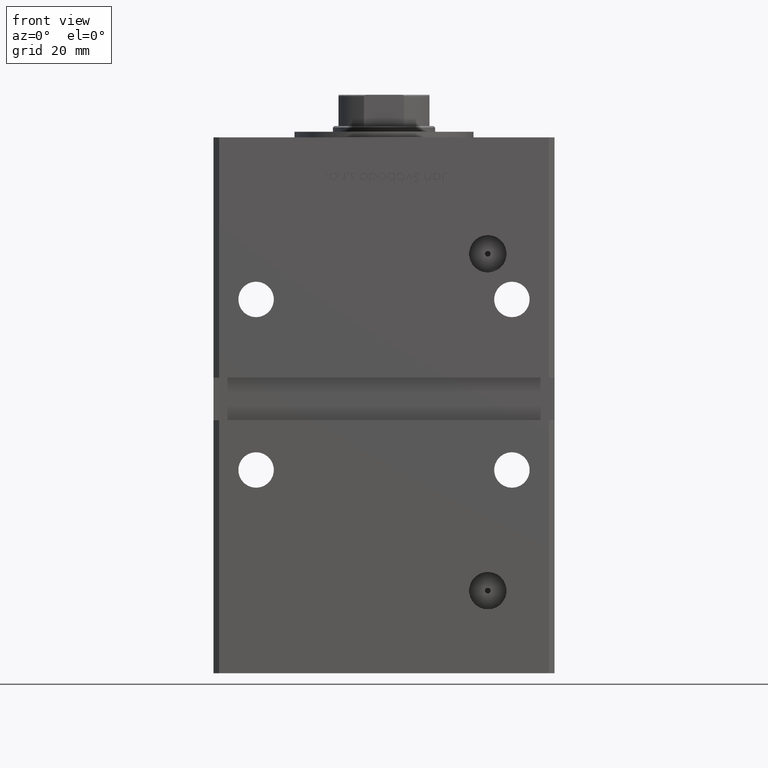
[diagram: clean part render]
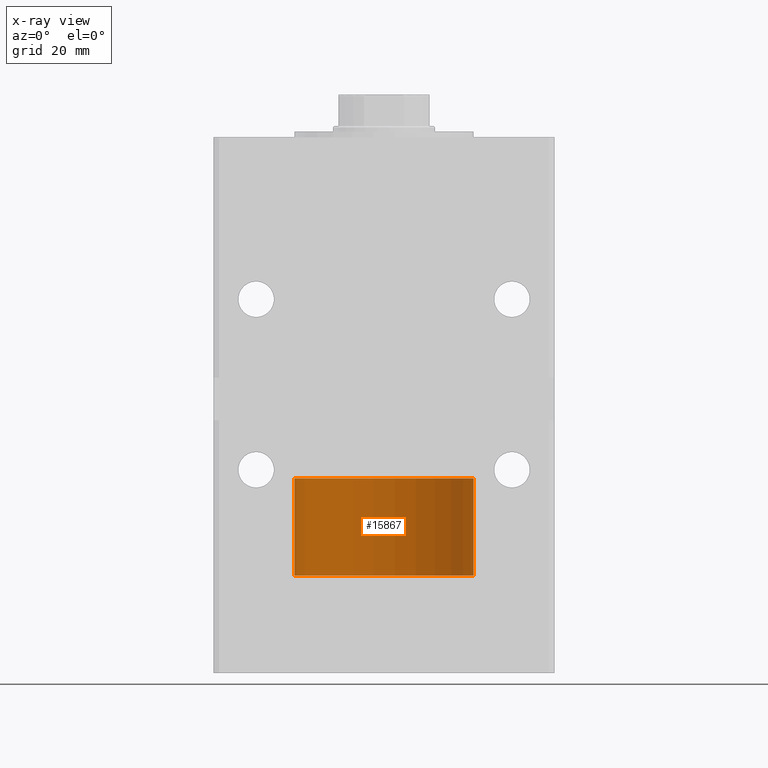
[diagram: x-ray — body ghosted, one internal face saturated and labeled with its STEP entity id]
A machine part, front view, then the same camera in x-ray: the body is ghosted and one INTERNAL B-rep face — a face not visible from any outside direction — is saturated and labeled: STEP entity #15867.
In plain terms, the highlighted cylindrical surface (partial cylindrical patch) has radius 31.5 mm, axis along (-0, -0, -1).
Its self-contained STEP definition (entity closure, byte-faithful):
#2708 = DIRECTION ( 'NONE',  ( -1.000000000000000000, 0.000000000000000000, 0.000000000000000000 ) ) ;
#3228 = FACE_OUTER_BOUND ( 'NONE', #37756, .T. ) ;
#4379 = CIRCLE ( 'NONE', #28385, 31.50000000000000000 ) ;
#5987 = DIRECTION ( 'NONE',  ( 1.000000000000000000, 0.000000000000000000, 0.000000000000000000 ) ) ;
#6071 = DIRECTION ( 'NONE',  ( -0.000000000000000000, -0.000000000000000000, -1.000000000000000000 ) ) ;
#6455 = EDGE_CURVE ( 'NONE', #23149, #13634, #29252, .T. ) ;
#7247 = CARTESIAN_POINT ( 'NONE',  ( 31.50000000000000000, 3.857637417314162689E-15, 0.000000000000000000 ) ) ;
#9575 = LINE ( 'NONE', #13604, #25944 ) ;
#11592 = ORIENTED_EDGE ( 'NONE', *, *, #6455, .T. ) ;
#12981 = AXIS2_PLACEMENT_3D ( 'NONE', #46756, #21838, #5987 ) ;
#13604 = CARTESIAN_POINT ( 'NONE',  ( -31.50000000000000000, 0.000000000000000000, 34.25000000000000000 ) ) ;
#13634 = VERTEX_POINT ( 'NONE', #52274 ) ;
#14106 = EDGE_CURVE ( 'NONE', #44300, #13634, #9575, .T. ) ;
#15867 = ADVANCED_FACE ( 'NONE', ( #3228 ), #19602, .T. ) ;
#16449 = LINE ( 'NONE', #33042, #37874 ) ;
#16809 = DIRECTION ( 'NONE',  ( 0.000000000000000000, 0.000000000000000000, 1.000000000000000000 ) ) ;
#18250 = CARTESIAN_POINT ( 'NONE',  ( -31.50000000000000000, 0.000000000000000000, 34.25000000000000000 ) ) ;
#19602 = CYLINDRICAL_SURFACE ( 'NONE', #34530, 31.50000000000000000 ) ;
#21096 = DIRECTION ( 'NONE',  ( 1.000000000000000000, 0.000000000000000000, 0.000000000000000000 ) ) ;
#21838 = DIRECTION ( 'NONE',  ( 0.000000000000000000, 0.000000000000000000, 1.000000000000000000 ) ) ;
#23149 = VERTEX_POINT ( 'NONE', #7247 ) ;
#24839 = CARTESIAN_POINT ( 'NONE',  ( 0.000000000000000000, 0.000000000000000000, 34.25000000000000000 ) ) ;
#25944 = VECTOR ( 'NONE', #6071, 1000.000000000000000 ) ;
#28385 = AXIS2_PLACEMENT_3D ( 'NONE', #24839, #16809, #21096 ) ;
#29252 = CIRCLE ( 'NONE', #12981, 31.50000000000000000 ) ;
#33042 = CARTESIAN_POINT ( 'NONE',  ( 31.50000000000000000, 3.857637417314162689E-15, 34.25000000000000000 ) ) ;
#33305 = DIRECTION ( 'NONE',  ( -0.000000000000000000, -0.000000000000000000, -1.000000000000000000 ) ) ;
#34530 = AXIS2_PLACEMENT_3D ( 'NONE', #39442, #52290, #2708 ) ;
#37756 = EDGE_LOOP ( 'NONE', ( #39727, #46500, #11592, #37943 ) ) ;
#37834 = VERTEX_POINT ( 'NONE', #40776 ) ;
#37874 = VECTOR ( 'NONE', #33305, 1000.000000000000000 ) ;
#37943 = ORIENTED_EDGE ( 'NONE', *, *, #14106, .F. ) ;
#39442 = CARTESIAN_POINT ( 'NONE',  ( 0.000000000000000000, 0.000000000000000000, 34.25000000000000000 ) ) ;
#39727 = ORIENTED_EDGE ( 'NONE', *, *, #41926, .F. ) ;
#40776 = CARTESIAN_POINT ( 'NONE',  ( 31.50000000000000000, 3.857637417314162689E-15, 34.25000000000000000 ) ) ;
#41926 = EDGE_CURVE ( 'NONE', #37834, #44300, #4379, .T. ) ;
#44043 = EDGE_CURVE ( 'NONE', #37834, #23149, #16449, .T. ) ;
#44300 = VERTEX_POINT ( 'NONE', #18250 ) ;
#46500 = ORIENTED_EDGE ( 'NONE', *, *, #44043, .T. ) ;
#46756 = CARTESIAN_POINT ( 'NONE',  ( 0.000000000000000000, 0.000000000000000000, 0.000000000000000000 ) ) ;
#52274 = CARTESIAN_POINT ( 'NONE',  ( -31.50000000000000000, 0.000000000000000000, 0.000000000000000000 ) ) ;
#52290 = DIRECTION ( 'NONE',  ( -0.000000000000000000, -0.000000000000000000, -1.000000000000000000 ) ) ;